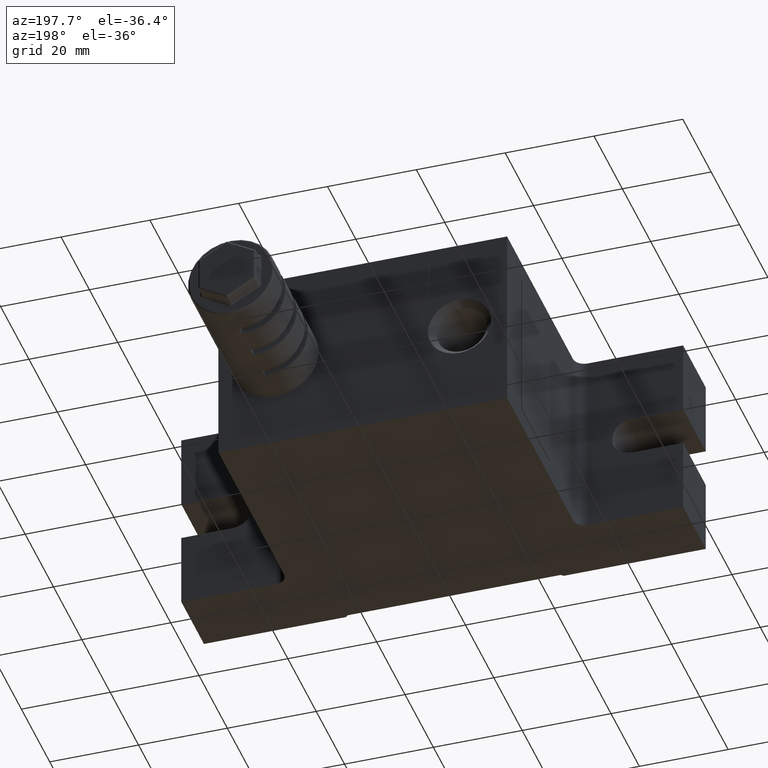
[diagram: clean part render]
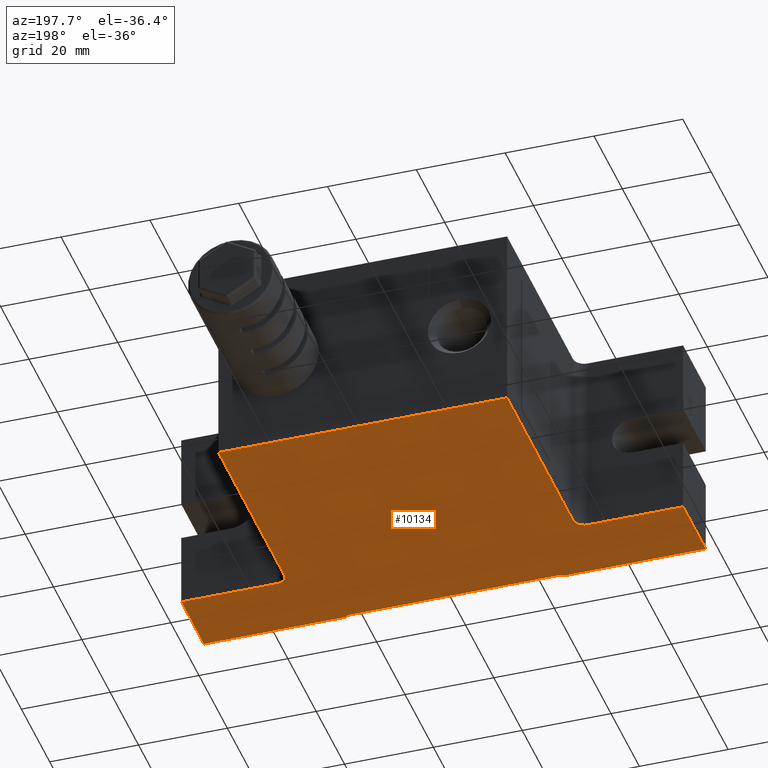
[diagram: same view with one face highlighted and labeled with its STEP entity id]
A machine part, auxiliary view. The second image highlights one B-rep face of the part: STEP entity #10134.
In plain terms, the highlighted planar face has unit normal (0, 0, -1).
Its self-contained STEP definition (entity closure, byte-faithful):
#238 = VECTOR ( 'NONE', #2138, 1000.000000000000000 ) ;
#245 = ORIENTED_EDGE ( 'NONE', *, *, #20740, .F. ) ;
#335 = EDGE_CURVE ( 'NONE', #592, #16569, #9633, .T. ) ;
#381 = CARTESIAN_POINT ( 'NONE',  ( -56.50000000000000000, -16.50000000000000000, -21.50000000000000000 ) ) ;
#592 = VERTEX_POINT ( 'NONE', #10623 ) ;
#597 = CARTESIAN_POINT ( 'NONE',  ( -32.50000000000000000, -14.00000000000000000, -21.50000000000000000 ) ) ;
#621 = CARTESIAN_POINT ( 'NONE',  ( 32.50000000000000000, -14.00000000000000000, -21.50000000000000000 ) ) ;
#748 = LINE ( 'NONE', #19284, #777 ) ;
#777 = VECTOR ( 'NONE', #6114, 1000.000000000000000 ) ;
#819 = EDGE_LOOP ( 'NONE', ( #11432, #10737, #21185, #20831, #13004, #17928, #12635, #16278, #13629, #15678, #5208, #245, #17049, #14704 ) ) ;
#987 = LINE ( 'NONE', #19901, #8209 ) ;
#1832 = CARTESIAN_POINT ( 'NONE',  ( -24.50000000000000000, -32.00000000000000000, -21.50000000000000000 ) ) ;
#1898 = CARTESIAN_POINT ( 'NONE',  ( 35.00000000000000000, -16.50000000000000000, -21.50000000000000000 ) ) ;
#2138 = DIRECTION ( 'NONE',  ( -1.000000000000000000, -1.416100796715759900E-016, 0.0000000000000000000 ) ) ;
#2251 = CARTESIAN_POINT ( 'NONE',  ( -56.50000000000000000, 32.50000000000000000, -21.50000000000000000 ) ) ;
#2530 = CARTESIAN_POINT ( 'NONE',  ( -35.00000000000000000, -16.50000000000000000, -21.50000000000000000 ) ) ;
#2725 = CARTESIAN_POINT ( 'NONE',  ( -56.50000000000000000, -16.50000000000000000, -21.50000000000000000 ) ) ;
#2923 = VERTEX_POINT ( 'NONE', #5553 ) ;
#3530 = EDGE_CURVE ( 'NONE', #2923, #10863, #19865, .T. ) ;
#3819 = CARTESIAN_POINT ( 'NONE',  ( 56.50000000000000000, -32.50000000000000000, -21.50000000000000000 ) ) ;
#4003 = DIRECTION ( 'NONE',  ( 1.000000000000000000, 0.0000000000000000000, 0.0000000000000000000 ) ) ;
#4068 = VECTOR ( 'NONE', #13906, 1000.000000000000000 ) ;
#4302 = DIRECTION ( 'NONE',  ( 1.000000000000000000, 0.0000000000000000000, 0.0000000000000000000 ) ) ;
#4656 = CARTESIAN_POINT ( 'NONE',  ( -24.00000000000000000, -32.00000000000000000, -21.50000000000000000 ) ) ;
#4776 = CARTESIAN_POINT ( 'NONE',  ( -32.50000000000000000, 32.50000000000000000, -21.50000000000000000 ) ) ;
#4801 = VERTEX_POINT ( 'NONE', #381 ) ;
#5208 = ORIENTED_EDGE ( 'NONE', *, *, #12692, .T. ) ;
#5490 = EDGE_CURVE ( 'NONE', #11791, #19711, #19908, .T. ) ;
#5553 = CARTESIAN_POINT ( 'NONE',  ( 32.50000000000000000, 32.50000000000000000, -21.50000000000000000 ) ) ;
#5665 = VECTOR ( 'NONE', #4003, 1000.000000000000000 ) ;
#6114 = DIRECTION ( 'NONE',  ( 1.000000000000000000, 0.0000000000000000000, 0.0000000000000000000 ) ) ;
#6347 = EDGE_CURVE ( 'NONE', #19711, #10863, #987, .T. ) ;
#6483 = DIRECTION ( 'NONE',  ( -0.7071067811865525700, -0.7071067811865425800, -0.0000000000000000000 ) ) ;
#7207 = DIRECTION ( 'NONE',  ( -1.000000000000000000, 0.0000000000000000000, 0.0000000000000000000 ) ) ;
#7286 = CIRCLE ( 'NONE', #13369, 2.500000000000002200 ) ;
#7312 = VECTOR ( 'NONE', #19544, 1000.000000000000000 ) ;
#7322 = VECTOR ( 'NONE', #19388, 1000.000000000000000 ) ;
#7847 = CARTESIAN_POINT ( 'NONE',  ( 24.00000000000000000, -32.00000000000000000, -21.50000000000000000 ) ) ;
#7898 = DIRECTION ( 'NONE',  ( -1.000000000000000000, 0.0000000000000000000, 0.0000000000000000000 ) ) ;
#8209 = VECTOR ( 'NONE', #9982, 1000.000000000000000 ) ;
#8599 = CARTESIAN_POINT ( 'NONE',  ( 35.00000000000000000, -14.00000000000000000, -21.50000000000000000 ) ) ;
#8609 = FACE_OUTER_BOUND ( 'NONE', #819, .T. ) ;
#9017 = LINE ( 'NONE', #1832, #238 ) ;
#9186 = VERTEX_POINT ( 'NONE', #3819 ) ;
#9378 = VECTOR ( 'NONE', #15822, 1000.000000000000000 ) ;
#9443 = AXIS2_PLACEMENT_3D ( 'NONE', #15770, #10693, #7207 ) ;
#9633 = LINE ( 'NONE', #16152, #7312 ) ;
#9894 = LINE ( 'NONE', #12492, #9378 ) ;
#9982 = DIRECTION ( 'NONE',  ( 0.0000000000000000000, 1.000000000000000000, 0.0000000000000000000 ) ) ;
#10134 = ADVANCED_FACE ( 'NONE', ( #8609 ), #20679, .T. ) ;
#10478 = EDGE_CURVE ( 'NONE', #2923, #15601, #17144, .T. ) ;
#10623 = CARTESIAN_POINT ( 'NONE',  ( 24.50000000000000000, -32.50000000000000000, -21.50000000000000000 ) ) ;
#10682 = AXIS2_PLACEMENT_3D ( 'NONE', #14379, #21023, #7898 ) ;
#10693 = DIRECTION ( 'NONE',  ( 0.0000000000000000000, 0.0000000000000000000, -1.000000000000000000 ) ) ;
#10737 = ORIENTED_EDGE ( 'NONE', *, *, #20407, .T. ) ;
#10840 = CARTESIAN_POINT ( 'NONE',  ( -56.50000000000000000, -32.50000000000000000, -21.50000000000000000 ) ) ;
#10863 = VERTEX_POINT ( 'NONE', #4776 ) ;
#11197 = VERTEX_POINT ( 'NONE', #20629 ) ;
#11432 = ORIENTED_EDGE ( 'NONE', *, *, #12894, .T. ) ;
#11621 = EDGE_CURVE ( 'NONE', #15601, #19623, #7286, .T. ) ;
#11791 = VERTEX_POINT ( 'NONE', #2530 ) ;
#12492 = CARTESIAN_POINT ( 'NONE',  ( 56.50000000000000000, -32.50000000000000000, -21.50000000000000000 ) ) ;
#12635 = ORIENTED_EDGE ( 'NONE', *, *, #6347, .T. ) ;
#12692 = EDGE_CURVE ( 'NONE', #19623, #16890, #748, .T. ) ;
#12894 = EDGE_CURVE ( 'NONE', #16569, #20867, #9017, .T. ) ;
#12991 = EDGE_CURVE ( 'NONE', #21213, #11197, #18889, .T. ) ;
#13004 = ORIENTED_EDGE ( 'NONE', *, *, #20777, .T. ) ;
#13282 = VECTOR ( 'NONE', #4302, 1000.000000000000000 ) ;
#13285 = CARTESIAN_POINT ( 'NONE',  ( 32.50000000000000000, 32.50000000000000000, -21.50000000000000000 ) ) ;
#13369 = AXIS2_PLACEMENT_3D ( 'NONE', #8599, #16769, #13460 ) ;
#13392 = EDGE_CURVE ( 'NONE', #592, #9186, #16516, .T. ) ;
#13460 = DIRECTION ( 'NONE',  ( -1.000000000000000000, 0.0000000000000000000, 0.0000000000000000000 ) ) ;
#13552 = LINE ( 'NONE', #14743, #17197 ) ;
#13629 = ORIENTED_EDGE ( 'NONE', *, *, #10478, .T. ) ;
#13703 = CARTESIAN_POINT ( 'NONE',  ( -56.50000000000000000, -32.50000000000000000, -21.50000000000000000 ) ) ;
#13906 = DIRECTION ( 'NONE',  ( -1.000000000000000000, 0.0000000000000000000, 0.0000000000000000000 ) ) ;
#14067 = LINE ( 'NONE', #2725, #13282 ) ;
#14121 = LINE ( 'NONE', #16078, #7322 ) ;
#14379 = CARTESIAN_POINT ( 'NONE',  ( -35.00000000000000000, -14.00000000000000000, -21.50000000000000000 ) ) ;
#14704 = ORIENTED_EDGE ( 'NONE', *, *, #335, .T. ) ;
#14743 = CARTESIAN_POINT ( 'NONE',  ( -24.50000000000000000, -32.50000000000000000, -21.50000000000000000 ) ) ;
#15070 = VECTOR ( 'NONE', #16593, 1000.000000000000000 ) ;
#15590 = CARTESIAN_POINT ( 'NONE',  ( -56.50000000000000000, -32.50000000000000000, -21.50000000000000000 ) ) ;
#15601 = VERTEX_POINT ( 'NONE', #621 ) ;
#15678 = ORIENTED_EDGE ( 'NONE', *, *, #11621, .T. ) ;
#15770 = CARTESIAN_POINT ( 'NONE',  ( -56.50000000000000000, 32.50000000000000000, -21.50000000000000000 ) ) ;
#15777 = VECTOR ( 'NONE', #18549, 1000.000000000000000 ) ;
#15822 = DIRECTION ( 'NONE',  ( 0.0000000000000000000, 1.000000000000000000, 0.0000000000000000000 ) ) ;
#16078 = CARTESIAN_POINT ( 'NONE',  ( -56.50000000000000000, -32.50000000000000000, -21.50000000000000000 ) ) ;
#16152 = CARTESIAN_POINT ( 'NONE',  ( 24.00000000000000000, -32.00000000000000000, -21.50000000000000000 ) ) ;
#16278 = ORIENTED_EDGE ( 'NONE', *, *, #3530, .F. ) ;
#16516 = LINE ( 'NONE', #13703, #15777 ) ;
#16569 = VERTEX_POINT ( 'NONE', #7847 ) ;
#16593 = DIRECTION ( 'NONE',  ( 0.0000000000000000000, -1.000000000000000000, 0.0000000000000000000 ) ) ;
#16769 = DIRECTION ( 'NONE',  ( -0.0000000000000000000, -0.0000000000000000000, 1.000000000000000000 ) ) ;
#16890 = VERTEX_POINT ( 'NONE', #17590 ) ;
#17049 = ORIENTED_EDGE ( 'NONE', *, *, #13392, .F. ) ;
#17144 = LINE ( 'NONE', #13285, #15070 ) ;
#17197 = VECTOR ( 'NONE', #6483, 1000.000000000000000 ) ;
#17590 = CARTESIAN_POINT ( 'NONE',  ( 56.50000000000000000, -16.50000000000000000, -21.50000000000000000 ) ) ;
#17928 = ORIENTED_EDGE ( 'NONE', *, *, #5490, .T. ) ;
#18549 = DIRECTION ( 'NONE',  ( 1.000000000000000000, 0.0000000000000000000, 0.0000000000000000000 ) ) ;
#18889 = LINE ( 'NONE', #15590, #5665 ) ;
#19284 = CARTESIAN_POINT ( 'NONE',  ( 56.50000000000000000, -16.50000000000000000, -21.50000000000000000 ) ) ;
#19388 = DIRECTION ( 'NONE',  ( 0.0000000000000000000, -1.000000000000000000, 0.0000000000000000000 ) ) ;
#19544 = DIRECTION ( 'NONE',  ( -0.7071067811865500200, 0.7071067811865450200, -0.0000000000000000000 ) ) ;
#19623 = VERTEX_POINT ( 'NONE', #1898 ) ;
#19711 = VERTEX_POINT ( 'NONE', #597 ) ;
#19865 = LINE ( 'NONE', #2251, #4068 ) ;
#19901 = CARTESIAN_POINT ( 'NONE',  ( -32.50000000000000000, 32.50000000000000000, -21.50000000000000000 ) ) ;
#19908 = CIRCLE ( 'NONE', #10682, 2.500000000000002200 ) ;
#19949 = EDGE_CURVE ( 'NONE', #4801, #21213, #14121, .T. ) ;
#20407 = EDGE_CURVE ( 'NONE', #20867, #11197, #13552, .T. ) ;
#20629 = CARTESIAN_POINT ( 'NONE',  ( -24.50000000000000000, -32.50000000000000000, -21.50000000000000000 ) ) ;
#20679 = PLANE ( 'NONE',  #9443 ) ;
#20740 = EDGE_CURVE ( 'NONE', #9186, #16890, #9894, .T. ) ;
#20777 = EDGE_CURVE ( 'NONE', #4801, #11791, #14067, .T. ) ;
#20831 = ORIENTED_EDGE ( 'NONE', *, *, #19949, .F. ) ;
#20867 = VERTEX_POINT ( 'NONE', #4656 ) ;
#21023 = DIRECTION ( 'NONE',  ( -0.0000000000000000000, -0.0000000000000000000, 1.000000000000000000 ) ) ;
#21185 = ORIENTED_EDGE ( 'NONE', *, *, #12991, .F. ) ;
#21213 = VERTEX_POINT ( 'NONE', #10840 ) ;